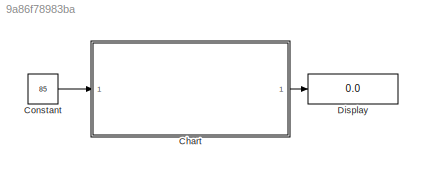
MODEL slx_9a86f78983ba
KIND model
CONFIG AbsTol = auto
CONFIG EnableMultiTasking = off
CONFIG FixedStep = auto
CONFIG MaxStep = auto
CONFIG MinStep = auto
CONFIG RelTol = 1e-3
CONFIG SampleTimeConstraint = Unconstrained
CONFIG Solver = VariableStepAuto
CONFIG SolverName = VariableStepAuto
CONFIG StartTime = 0.0
CONFIG StopTime = 10.0
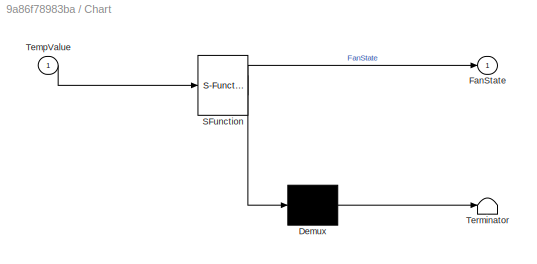
BLOCK [SubSystem] Chart
  ErrorFcn = Stateflow.Translate.translate
  PermitHierarchicalResolution = ExplicitOnly
  Ports = [1, 1]
  RequestExecContextInheritance = off
  SFBlockType = Chart
  TreatAsAtomicUnit = on
BLOCK [Demux] Chart/ Demux 
  Outputs = 1
  Ports = [1, 1]
BLOCK [S-Function] Chart/ SFunction 
  EnableBusSupport = on
  FunctionName = sf_sfun
  PortCounts = [1 2]
  Ports = [1, 2]
  SFcnIsStateOwnerBlock = off
  SFunctionDeploymentMode = off
  Tag = Stateflow S-Function FanControl 3
BLOCK [Terminator] Chart/ Terminator 
BLOCK [Outport] Chart/FanState
  IconDisplay = Port number
BLOCK [Inport] Chart/TempValue
  IconDisplay = Port number
BLOCK [Constant] Constant
  OutDataTypeStr = int8
  Value = 85
BLOCK [Display] Display
  Decimation = 1
  Ports = [1]
LINE Chart:1 -> Display:1
LINE Constant:1 -> Chart:1
CHART Chart states=5 transitions=4
  STATE_LABEL 'in case 1: condition action, it is excuted if the condition is TRUE\nin case 2: transition action , it is excuted if the transition (1&&2) is TRUE'
  STATE_LABEL '1'
  STATE_LABEL 'FanOFF\n\nen:  /*Entry*/\n/*Excuted once when you enter the sate*/\nFanState=0;\ndu: /*Duration*/\n/*Excuted as long as the SW still in this state */\nex: /*Exit*/\n/*Excuted once when you leaves the state */'
  STATE_LABEL 'FanON\nen:\nFanState=1;\n\ndu:\nex:'
  STATE_LABEL '2'
